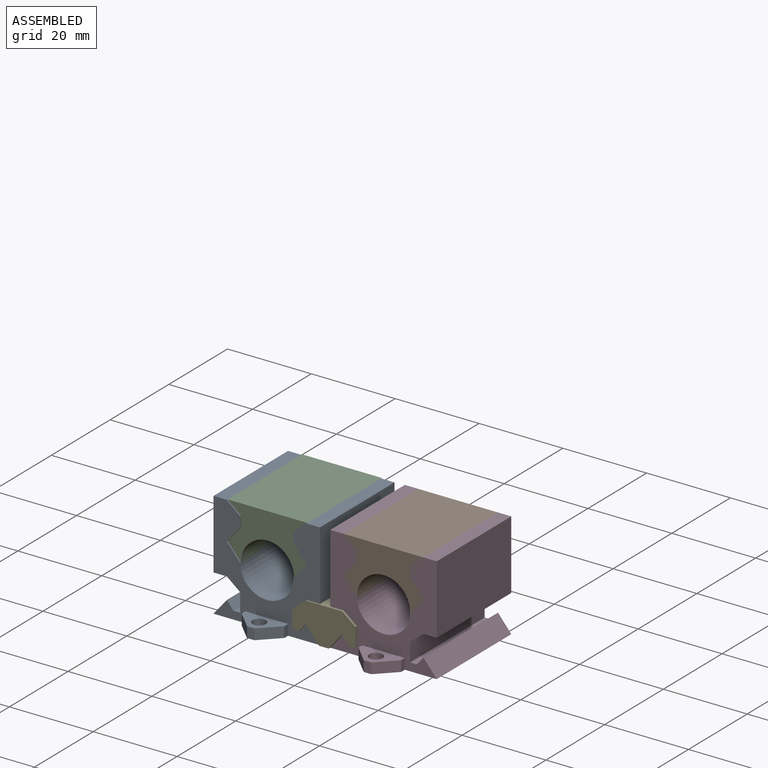
[diagram: assembled view]
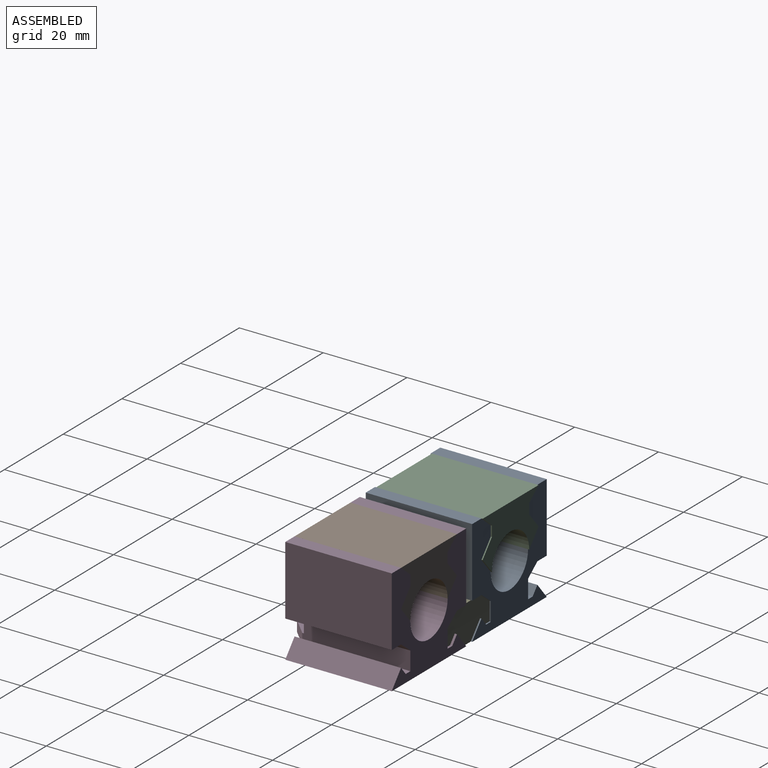
[diagram: assembled view, second angle]
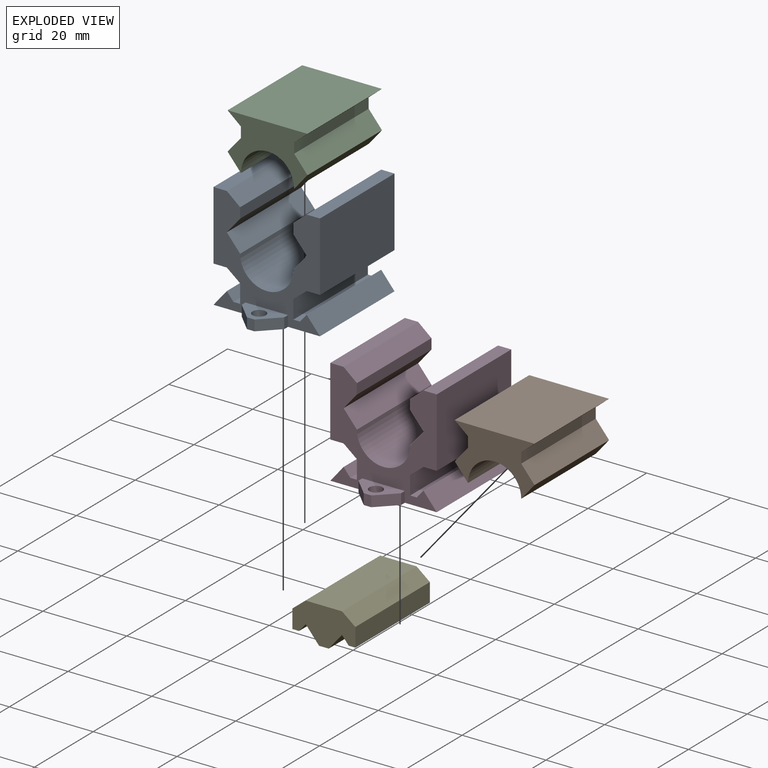
[diagram: exploded view]
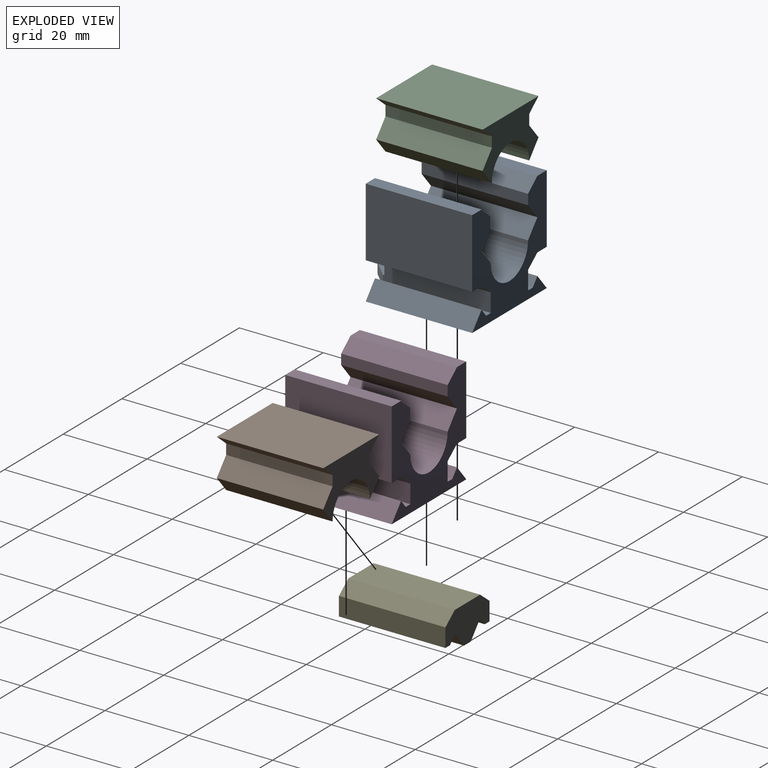
[diagram: exploded view, second angle]
ASSEMBLY  parts=5 mates=8
PART A: 35 faces, bbox 25.4x30.9x25.4 mm
  f0: plane 25.4x25.4mm, normal (0,-1,0), area 284.6mm2, adj f1,f2,f3,f4,f5,f6,f7,f8
  f1: plane 25.4x3.18mm, normal (0,0,-1), area 80.6mm2, adj f0,f2,f26,f27
  f2: plane 25.4x3.18mm, normal (-0.62,0,-0.78), area 103.3mm2, adj f0,f1,f3,f27
  f3: plane 25.4x4.45mm, normal (-1,0,0), area 112.9mm2, adj f0,f2,f4,f27
  f4: plane 25.4x1.59mm, normal (0,0,1), area 40.3mm2, adj f0,f3,f5,f27
  f5: plane 25.4x1.91mm, normal (0.77,0,0.64), area 63mm2, adj f0,f4,f6,f27
  f6: plane 25.4x3.81mm, normal (-0.77,0,0.64), area 126mm2, adj f0,f5,f7,f27
  f7: plane 30.85x25.4mm, normal (0,0,-1), area 675.1mm2, adj f0,f6,f8,f27,f28,f30,f31,f32
  f8: plane 25.4x3.81mm, normal (0.77,0,0.64), area 126mm2, adj f0,f7,f9,f27
  f9: plane 25.4x1.91mm, normal (-0.77,0,0.64), area 63mm2, adj f0,f8,f10,f27
  f10: plane 25.4x1.59mm, normal (0,0,1), area 40.3mm2, adj f0,f9,f11,f27
  f11: plane 25.4x4.45mm, normal (1,0,0), area 112.9mm2, adj f0,f10,f12,f27
  f12: plane 25.4x3.18mm, normal (0.62,0,-0.78), area 103.3mm2, adj f0,f11,f13,f27
  f13: plane 25.4x3.18mm, normal (0,0,-1), area 80.6mm2, adj f0,f12,f14,f27
  f14: plane 25.4x16.51mm, normal (1,0,0), area 419.4mm2, adj f0,f13,f15,f27
  f15: plane 25.4x3.18mm, normal (0,0,1), area 80.6mm2, adj f0,f14,f16,f27
  f16: plane 25.4x3.18mm, normal (-0.64,0,0.77), area 105.3mm2, adj f0,f15,f17,f27
  f17: plane 25.4x2.47mm, normal (-1,0,0), area 62.7mm2, adj f0,f16,f18,f27
  f18: plane 25.4x3.78mm, normal (-0.77,0,-0.64), area 125.5mm2, adj f0,f17,f19,f27
  f19: plane 25.4x3.78mm, normal (-0.77,0,0.64), area 125.5mm2, adj f0,f18,f20,f27
  f20: cylinder r=6.35mm len=25.4mm, axis (0,1,0), area 506.7mm2, adj f0,f19,f21,f27
  f21: plane 25.4x3.78mm, normal (0.77,0,0.64), area 125.5mm2, adj f0,f20,f22,f27
  f22: plane 25.4x3.78mm, normal (0.77,0,-0.64), area 125.5mm2, adj f0,f21,f23,f27
  f23: plane 25.4x2.47mm, normal (1,0,0), area 62.7mm2, adj f0,f22,f24,f27
  f24: plane 25.4x3.18mm, normal (0.64,0,0.77), area 105.3mm2, adj f0,f23,f25,f27
  f25: plane 25.4x3.18mm, normal (0,0,1), area 80.6mm2, adj f0,f24,f26,f27
  f26: plane 25.4x16.51mm, normal (-1,0,0), area 419.4mm2, adj f0,f1,f25,f27
  f27: plane 25.4x25.4mm, normal (0,1,0), area 310.4mm2, adj f1,f2,f3,f4,f5,f6,f7,f8
  f28: plane 2.54x1.27mm, normal (1,0,0), area 3.2mm2, adj f0,f7,f29,f31
  f29: plane 10.16x5.45mm, normal (0,0,1), area 30mm2, adj f0,f28,f30,f31,f32,f33,f34
  f30: plane 2.54x1.27mm, normal (-1,0,0), area 3.2mm2, adj f0,f7,f29,f32
  f31: plane 4.18x4.18mm, normal (0.71,-0.71,0), area 15mm2, adj f7,f28,f29,f33
  f32: plane 4.18x4.18mm, normal (-0.71,-0.71,0), area 15mm2, adj f7,f29,f30,f33
  f33: plane 2.54x1.8mm, normal (0,-1,0), area 4.6mm2, adj f7,f29,f31,f32
  f34: cylinder r=1.59mm len=3.18mm, axis (0,0,1), area 25.3mm2, adj f7,f29
PART B: 12 faces, bbox 19.1x25.4x12.7 mm
  f0: plane 25.4x19.05mm, normal (0,0,1), area 483.9mm2, adj f1,f9,f10,f11
  f1: plane 25.4x3.18mm, normal (-0.64,0,-0.77), area 105.3mm2, adj f0,f2,f10,f11
  f2: plane 25.4x2.47mm, normal (-1,0,0), area 62.7mm2, adj f1,f3,f10,f11
  f3: plane 25.4x3.78mm, normal (-0.77,0,0.64), area 125.5mm2, adj f2,f4,f10,f11
  f4: plane 25.4x3.78mm, normal (-0.77,0,-0.64), area 125.5mm2, adj f3,f5,f10,f11
  f5: cylinder r=6.35mm len=25.4mm, axis (0,1,0), area 506.7mm2, adj f4,f6,f10,f11
  f6: plane 25.4x3.78mm, normal (0.77,0,-0.64), area 125.5mm2, adj f5,f7,f10,f11
  f7: plane 25.4x3.78mm, normal (0.77,0,0.64), area 125.5mm2, adj f6,f8,f10,f11
  f8: plane 25.4x2.47mm, normal (1,0,0), area 62.7mm2, adj f7,f9,f10,f11
  f9: plane 25.4x3.18mm, normal (0.64,0,-0.77), area 105.3mm2, adj f0,f8,f10,f11
  f10: plane 19.05x12.7mm, normal (0,-1,0), area 130.4mm2, adj f0,f1,f2,f3,f4,f5,f6,f7
  f11: plane 19.05x12.7mm, normal (0,1,0), area 130.4mm2, adj f0,f1,f2,f3,f4,f5,f6,f7
PART C: same geometry as B
PART D: same geometry as A
PART E: 14 faces, bbox 15x25.4x8.9 mm
  f0: plane 15.01x8.89mm, normal (0,1,0), area 98.2mm2, adj f1,f3,f4,f5,f6,f7,f8,f9
  f1: plane 25.4x8.66mm, normal (0,0,1), area 220mm2, adj f0,f2,f4,f9
  f2: plane 15.01x8.89mm, normal (0,-1,0), area 98.2mm2, adj f1,f3,f4,f5,f6,f7,f8,f9
  f3: plane 25.4x2.31mm, normal (0,0,-1), area 58.7mm2, adj f0,f2,f5,f13
  f4: plane 25.4x3.18mm, normal (0.62,0,0.78), area 103.3mm2, adj f0,f1,f2,f8
  f5: plane 25.4x3.81mm, normal (0.77,0,-0.64), area 126mm2, adj f0,f2,f3,f6
  f6: plane 25.4x1.91mm, normal (-0.77,0,-0.64), area 63mm2, adj f0,f2,f5,f7
  f7: plane 25.4x1.59mm, normal (0,0,-1), area 40.3mm2, adj f0,f2,f6,f8
  f8: plane 25.4x4.45mm, normal (1,0,0), area 112.9mm2, adj f0,f2,f4,f7
  f9: plane 25.4x3.18mm, normal (-0.62,0,0.78), area 103.3mm2, adj f0,f1,f2,f10
  f10: plane 25.4x4.45mm, normal (-1,0,0), area 112.9mm2, adj f0,f2,f9,f11
  f11: plane 25.4x1.59mm, normal (0,0,-1), area 40.3mm2, adj f0,f2,f10,f12
  f12: plane 25.4x1.91mm, normal (0.77,0,-0.64), area 63mm2, adj f0,f2,f11,f13
  f13: plane 25.4x3.81mm, normal (-0.77,0,-0.64), area 126mm2, adj f0,f2,f3,f12
PLACE A t=(-18.09,1.81,2.61)mm fixed
PLACE B t=(9.62,2.02,2.61)mm
PLACE C t=(-18.09,2.08,2.61)mm
PLACE D t=(9.62,2.02,2.61)mm
PLACE E t=(9.62,1.49,2.61)mm
MATE planar C.f9 <-> A.f16  axis (0.64,0,-0.77) through (-10.16,-10.62,13.98)mm
MATE planar B.f1 <-> D.f24  axis (-0.64,0,-0.77) through (1.68,-10.68,13.98)mm
MATE planar B.f3 <-> D.f22  axis (-0.77,0,0.64) through (1.68,-10.68,8.29)mm
MATE planar E.f13 <-> A.f8  axis (-0.77,0,-0.64) through (-6.98,-11.21,-8.19)mm
MATE planar E.f10 <-> A.f11  axis (-1,0,0) through (-11.74,-11.21,-5.96)mm
MATE planar C.f1 <-> A.f24  axis (-0.64,0,-0.77) through (-26.03,-10.62,13.98)mm
MATE planar D.f3 <-> E.f8  axis (-1,0,0) through (3.27,-10.68,-5.96)mm
MATE planar D.f6 <-> E.f5  axis (-0.77,0,0.64) through (-1.49,-10.68,-8.19)mm
